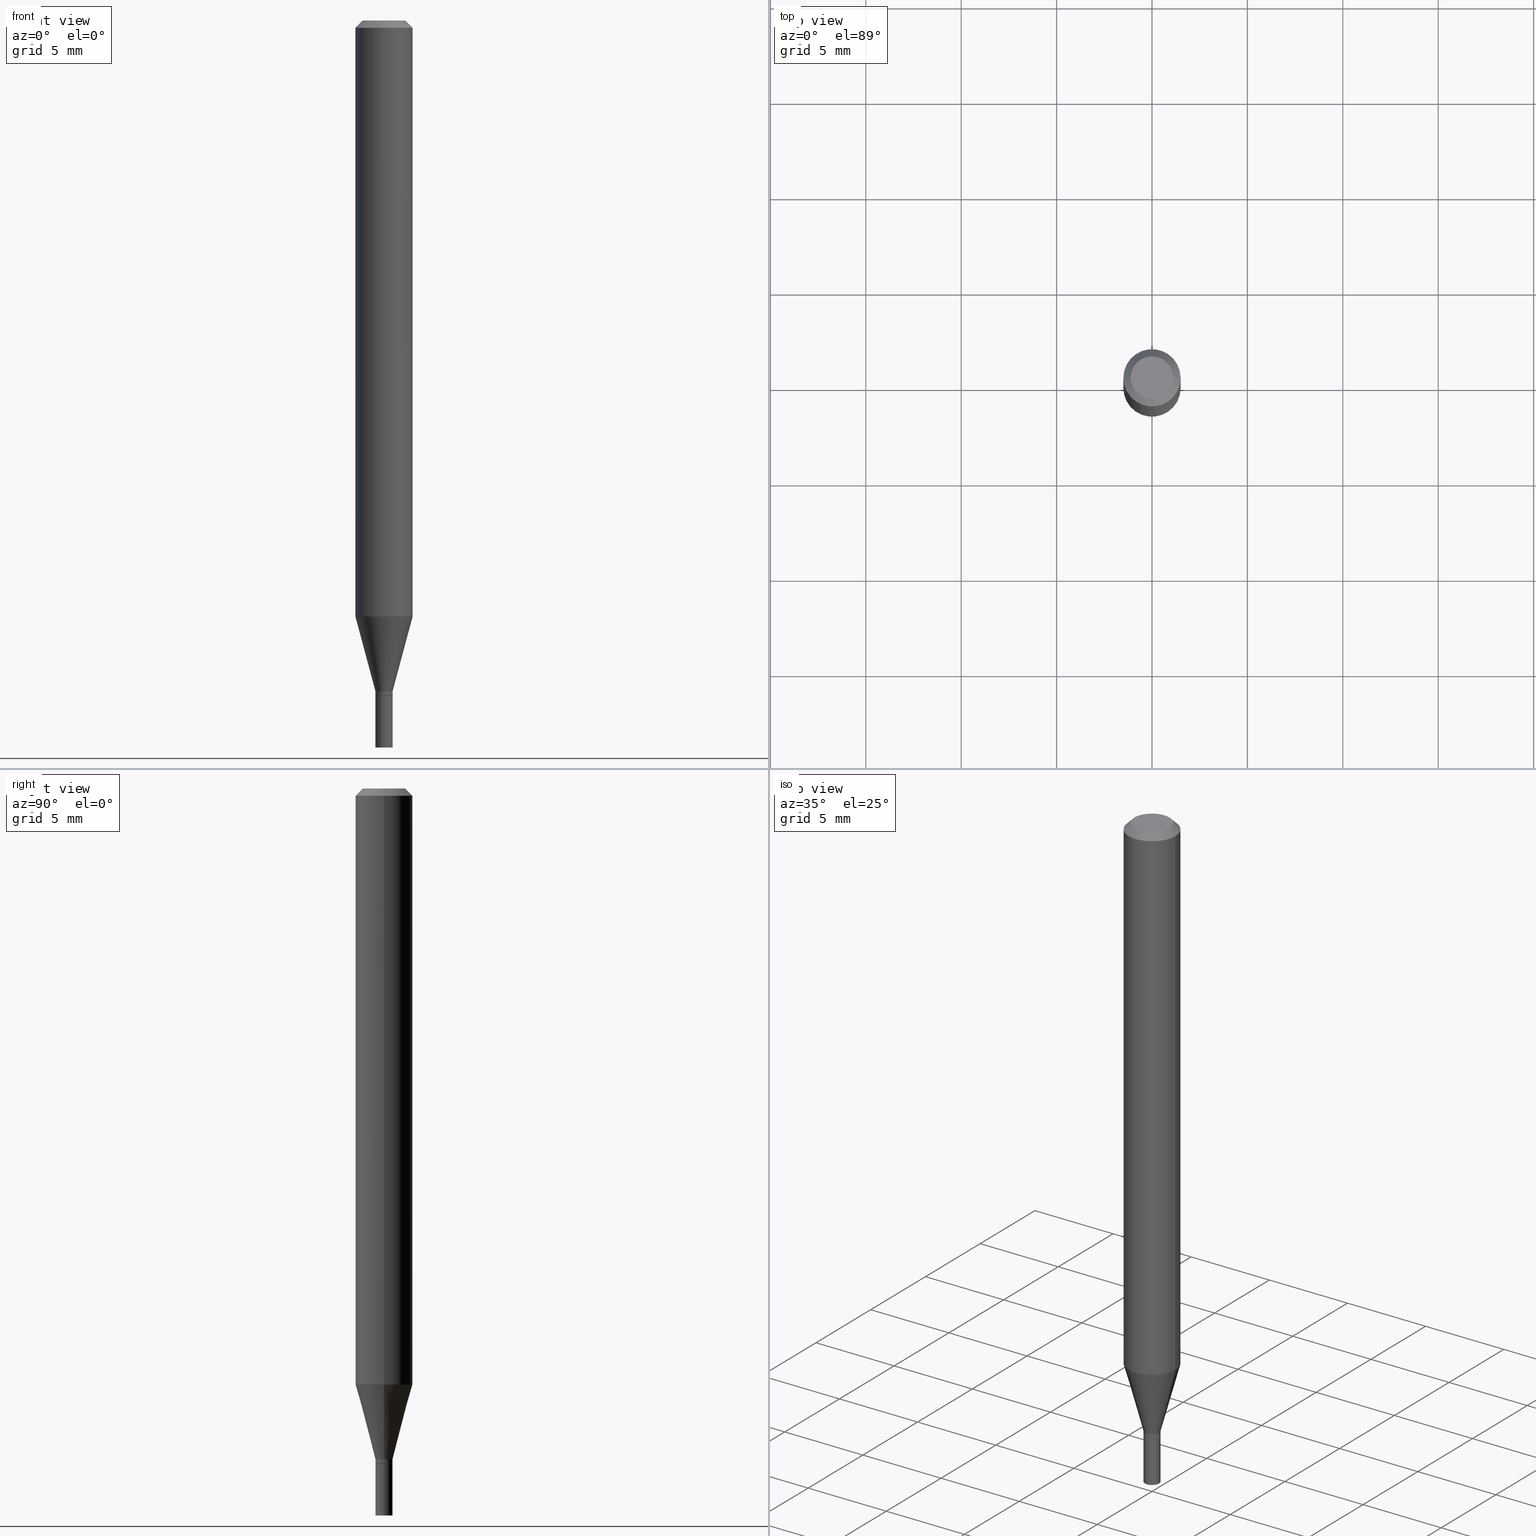
[diagram: canonical four-view strip — front | top / right | iso, engineering-drawing reading convention]
A machine part, canonical four-view strip (front | top / right | iso — engineering-drawing reading convention). The complete STEP part file that produces these views, byte-faithful:
ISO-10303-21;
HEADER;
FILE_DESCRIPTION (( 'STEP AP203' ),
    '1' );
FILE_NAME ('02356.STEP',
    '2024-03-18T20:13:35',
    ( '' ),
    ( '' ),
    'SwSTEP 2.0',
    'SolidWorks 2023',
    '' );
FILE_SCHEMA (( 'CONFIG_CONTROL_DESIGN' ));
ENDSEC;

DATA;
#1 = CARTESIAN_POINT ( 'NONE',  ( 3.007143345765359865E-29, -4.293403722186439259E-15, -1.229679699107027124 ) ) ;
#2 = ORIENTED_EDGE ( 'NONE', *, *, #147, .F. ) ;
#3 = DIRECTION ( 'NONE',  ( 1.000000000000000000, -6.982962677686247778E-15, 0.000000000000000000 ) ) ;
#4 = FACE_OUTER_BOUND ( 'NONE', #128, .T. ) ;
#5 = CONICAL_SURFACE ( 'NONE', #73, 0.01769999999999992413, 0.2617993877991501295 ) ;
#6 = DIRECTION ( 'NONE',  ( 2.438088387897960049E-29, -3.491481338843145188E-15, -1.000000000000000000 ) ) ;
#7 = EDGE_CURVE ( 'NONE', #20, #191, #131, .T. ) ;
#8 = DIRECTION ( 'NONE',  ( 1.000000000000000000, -6.982962677686266711E-15, 4.876176775795935793E-29 ) ) ;
#9 = PRODUCT ( '02356', '02356', '', ( #230 ) ) ;
#10 = DIRECTION ( 'NONE',  ( 0.7071067811865450192, -7.319954787623246579E-15, -0.7071067811865500152 ) ) ;
#11 = ADVANCED_FACE ( 'NONE', ( #60 ), #344, .F. ) ;
#12 = ORIENTED_EDGE ( 'NONE', *, *, #349, .T. ) ;
#13 =( NAMED_UNIT ( * ) SI_UNIT ( $, .STERADIAN. ) SOLID_ANGLE_UNIT ( ) );
#14 = EDGE_CURVE ( 'NONE', #234, #450, #375, .T. ) ;
#15 = CALENDAR_DATE ( 2024, 18, 3 ) ;
#16 = AXIS2_PLACEMENT_3D ( 'NONE', #224, #144, #328 ) ;
#17 = AXIS2_PLACEMENT_3D ( 'NONE', #247, #288, #361 ) ;
#18 = ORIENTED_EDGE ( 'NONE', *, *, #212, .T. ) ;
#19 = APPROVAL_ROLE ( '' ) ;
#20 = VERTEX_POINT ( 'NONE', #42 ) ;
#21 = MANIFOLD_SOLID_BREP ( 'Body-Move/Copy2[1]', #449 ) ;
#22 = APPROVAL_ROLE ( '' ) ;
#23 = EDGE_LOOP ( 'NONE', ( #447, #226 ) ) ;
#24 = APPROVAL_STATUS ( 'not_yet_approved' ) ;
#25 = ADVANCED_FACE ( 'NONE', ( #362 ), #323, .T. ) ;
#26 = AXIS2_PLACEMENT_3D ( 'NONE', #136, #68, #281 ) ;
#27 = DIRECTION ( 'NONE',  ( -2.445468806185136597E-29, 3.491481338843145583E-15, 1.000000000000000000 ) ) ;
#28 = ORIENTED_EDGE ( 'NONE', *, *, #233, .F. ) ;
#29 = VERTEX_POINT ( 'NONE', #44 ) ;
#30 = CARTESIAN_POINT ( 'NONE',  ( 3.384528827760229323E-29, -4.832210172958913572E-15, -1.384000000000000119 ) ) ;
#31 = VERTEX_POINT ( 'NONE', #399 ) ;
#32 = CARTESIAN_POINT ( 'NONE',  ( -0.01769999999999992413, -4.738565737046734311E-15, -1.393200000000000216 ) ) ;
#33 = CLOSED_SHELL ( 'NONE', ( #25, #155, #315, #91, #97, #64, #135, #337, #420, #11, #363, #376 ) ) ;
#34 = CIRCLE ( 'NONE', #150, 0.01769999999999992413 ) ;
#35 = DIRECTION ( 'NONE',  ( -2.445468806185136597E-29, 3.491481338843145583E-15, 1.000000000000000000 ) ) ;
#36 = CARTESIAN_POINT ( 'NONE',  ( -0.01769999999999992413, -4.706444108729376279E-15, -1.384000000000000119 ) ) ;
#37 = DIRECTION ( 'NONE',  ( 1.000000000000000000, -6.982962677686247778E-15, 0.000000000000000000 ) ) ;
#38 = CARTESIAN_POINT ( 'NONE',  ( 3.668203209277704895E-29, -5.237222008264718177E-15, -1.500000000000000222 ) ) ;
#39 = CIRCLE ( 'NONE', #16, 0.01770000000000000046 ) ;
#40 = DIRECTION ( 'NONE',  ( 1.000000000000000000, -6.982962677686247778E-15, 0.000000000000000000 ) ) ;
#41 = CARTESIAN_POINT ( 'NONE',  ( -0.01720000000000000001, -4.743864191394955136E-15, -1.393700000000000161 ) ) ;
#42 = CARTESIAN_POINT ( 'NONE',  ( 0.01770000000000000046, -5.360820447659765363E-15, -1.500000000000000222 ) ) ;
#43 = CARTESIAN_POINT ( 'NONE',  ( -0.01720000000000000001, -4.741214964220845512E-15, -1.393700000000000161 ) ) ;
#44 = CARTESIAN_POINT ( 'NONE',  ( -0.01770000000000000046, -4.925883710875667561E-15, -1.393700000000000161 ) ) ;
#45 = CIRCLE ( 'NONE', #400, 0.01769999999999992413 ) ;
#46 = VECTOR ( 'NONE', #439, 39.37007874015748143 ) ;
#47 = CARTESIAN_POINT ( 'NONE',  ( -0.05904999999999999832, -1.753312485668204070E-15, -0.01499999999999999944 ) ) ;
#48 = PERSON_AND_ORGANIZATION ( #63, #201 ) ;
#49 = EDGE_LOOP ( 'NONE', ( #61, #307, #385, #163 ) ) ;
#50 = PERSON_AND_ORGANIZATION_ROLE ( 'design_owner' ) ;
#51 = ADVANCED_FACE ( 'NONE', ( #330 ), #142, .F. ) ;
#52 = ORIENTED_EDGE ( 'NONE', *, *, #217, .F. ) ;
#53 = DATE_TIME_ROLE ( 'classification_date' ) ;
#54 = CC_DESIGN_PERSON_AND_ORGANIZATION_ASSIGNMENT ( #333, #122, ( #443 ) ) ;
#55 = AXIS2_PLACEMENT_3D ( 'NONE', #185, #180, #250 ) ;
#56 = VERTEX_POINT ( 'NONE', #239 ) ;
#57 = DATE_AND_TIME ( #15, #423 ) ;
#58 = DIRECTION ( 'NONE',  ( -2.445468806185136877E-29, 3.491481338843145188E-15, 1.000000000000000000 ) ) ;
#59 = APPROVAL_DATE_TIME ( #154, #397 ) ;
#60 = FACE_OUTER_BOUND ( 'NONE', #108, .T. ) ;
#61 = ORIENTED_EDGE ( 'NONE', *, *, #428, .F. ) ;
#62 = LINE ( 'NONE', #109, #413 ) ;
#63 = PERSON ( 'UNSPECIFIED', 'UNSPECIFIED', 'UNSPECIFIED', ('UNSPECIFIED'), ('UNSPECIFIED'), ('UNSPECIFIED') ) ;
#64 = ADVANCED_FACE ( 'NONE', ( #4 ), #251, .T. ) ;
#65 = CARTESIAN_POINT ( 'NONE',  ( 0.000000000000000000, 0.000000000000000000, 0.000000000000000000 ) ) ;
#66 = ORIENTED_EDGE ( 'NONE', *, *, #256, .F. ) ;
#67 = DIRECTION ( 'NONE',  ( 0.2588190451025214611, 1.565188264969621573E-15, 0.9659258262890682012 ) ) ;
#68 = DIRECTION ( 'NONE',  ( 2.438088387897960049E-29, -3.491481338843145188E-15, -1.000000000000000000 ) ) ;
#69 = AXIS2_PLACEMENT_3D ( 'NONE', #213, #358, #429 ) ;
#70 = LINE ( 'NONE', #78, #46 ) ;
#71 = LENGTH_MEASURE_WITH_UNIT ( LENGTH_MEASURE( 0.02539999999999999897 ), #366 );
#72 = DIRECTION ( 'NONE',  ( -2.445468806185136597E-29, 3.491481338843145583E-15, 1.000000000000000000 ) ) ;
#73 = AXIS2_PLACEMENT_3D ( 'NONE', #30, #433, #438 ) ;
#74 = APPROVAL ( #306, 'UNSPECIFIED' ) ;
#75 = FACE_OUTER_BOUND ( 'NONE', #419, .T. ) ;
#76 = EDGE_CURVE ( 'NONE', #346, #269, #312, .T. ) ;
#77 = FACE_OUTER_BOUND ( 'NONE', #356, .T. ) ;
#78 = CARTESIAN_POINT ( 'NONE',  ( -0.01769999999999992413, 1.257660642295371938E-16, -8.706515109751145864E-31 ) ) ;
#79 = FACE_OUTER_BOUND ( 'NONE', #235, .T. ) ;
#80 = EDGE_CURVE ( 'NONE', #140, #148, #387, .T. ) ;
#81 = CARTESIAN_POINT ( 'NONE',  ( -0.05904999999999999832, -3.873828236720099766E-15, -1.229679699107027124 ) ) ;
#82 = AXIS2_PLACEMENT_3D ( 'NONE', #326, #165, #139 ) ;
#83 = CALENDAR_DATE ( 2024, 18, 3 ) ;
#84 = COORDINATED_UNIVERSAL_TIME_OFFSET ( 5, 0, .BEHIND. ) ;
#85 = EDGE_CURVE ( 'NONE', #56, #324, #284, .T. ) ;
#86 = APPLICATION_CONTEXT ( 'configuration controlled 3d designs of mechanical parts and assemblies' ) ;
#87 = APPROVAL_ROLE ( '' ) ;
#88 = ORIENTED_EDGE ( 'NONE', *, *, #14, .T. ) ;
#89 = VECTOR ( 'NONE', #382, 39.37007874015747433 ) ;
#90 = APPROVAL_PERSON_ORGANIZATION ( #379, #397, #22 ) ;
#91 = ADVANCED_FACE ( 'NONE', ( #79 ), #181, .T. ) ;
#92 = DIRECTION ( 'NONE',  ( -2.445468806185136597E-29, 3.491481338843145583E-15, 1.000000000000000000 ) ) ;
#93 = DATE_AND_TIME ( #83, #377 ) ;
#94 = ORIENTED_EDGE ( 'NONE', *, *, #300, .T. ) ;
#95 = VERTEX_POINT ( 'NONE', #403 ) ;
#96 = ORIENTED_EDGE ( 'NONE', *, *, #76, .F. ) ;
#97 = ADVANCED_FACE ( 'NONE', ( #77 ), #5, .T. ) ;
#98 = AXIS2_PLACEMENT_3D ( 'NONE', #221, #254, #441 ) ;
#99 = LINE ( 'NONE', #386, #442 ) ;
#100 = AXIS2_PLACEMENT_3D ( 'NONE', #402, #6, #396 ) ;
#101 = VERTEX_POINT ( 'NONE', #117 ) ;
#102 = CARTESIAN_POINT ( 'NONE',  ( 0.05904999999999999832, -4.123439461173740327E-16, 2.879382386107500220E-30 ) ) ;
#103 = DIRECTION ( 'NONE',  ( -2.445468806185136597E-29, 3.491481338843145583E-15, 1.000000000000000000 ) ) ;
#104 = DIRECTION ( 'NONE',  ( 1.000000000000000000, -6.982962677686265922E-15, 4.888540261209747396E-29 ) ) ;
#105 = AXIS2_PLACEMENT_3D ( 'NONE', #458, #172, #462 ) ;
#106 = CC_DESIGN_APPROVAL ( #397, ( #401 ) ) ;
#107 = EDGE_CURVE ( 'NONE', #324, #101, #280, .T. ) ;
#108 = EDGE_LOOP ( 'NONE', ( #418, #273 ) ) ;
#109 = CARTESIAN_POINT ( 'NONE',  ( 0.01720000000000000001, -4.986184500001896497E-15, -1.393700000000000161 ) ) ;
#110 = DIRECTION ( 'NONE',  ( -2.445468806185136597E-29, 3.491481338843145583E-15, 1.000000000000000000 ) ) ;
#111 = CARTESIAN_POINT ( 'NONE',  ( 3.408249875180225636E-29, -4.866077541945693107E-15, -1.393700000000000161 ) ) ;
#112 = LINE ( 'NONE', #282, #199 ) ;
#113 = CARTESIAN_POINT ( 'NONE',  ( -0.05904999999999999832, 3.599717260347268549E-16, -0.01499999999999999944 ) ) ;
#114 = CIRCLE ( 'NONE', #277, 0.05904999999999999832 ) ;
#115 = LOCAL_TIME ( 16, 13, 35.00000000000000000, #446 ) ;
#116 = DIRECTION ( 'NONE',  ( -1.000000000000000000, 6.982962677686266711E-15, 0.000000000000000000 ) ) ;
#117 = CARTESIAN_POINT ( 'NONE',  ( 0.05904999999999999832, -4.647161662000212105E-16, -0.01499999999999999944 ) ) ;
#118 = CARTESIAN_POINT ( 'NONE',  ( 0.000000000000000000, 0.000000000000000000, 0.000000000000000000 ) ) ;
#119 = APPROVAL_DATE_TIME ( #374, #322 ) ;
#120 = CIRCLE ( 'NONE', #359, 0.01720000000000000001 ) ;
#121 = PERSON_AND_ORGANIZATION ( #63, #201 ) ;
#122 = PERSON_AND_ORGANIZATION_ROLE ( 'creator' ) ;
#123 = ORIENTED_EDGE ( 'NONE', *, *, #212, .F. ) ;
#124 = SECURITY_CLASSIFICATION_LEVEL ( 'unclassified' ) ;
#125 = PERSON_AND_ORGANIZATION ( #63, #201 ) ;
#126 = VECTOR ( 'NONE', #220, 39.37007874015748143 ) ;
#127 = EDGE_CURVE ( 'NONE', #31, #346, #120, .T. ) ;
#128 = EDGE_LOOP ( 'NONE', ( #200, #94, #203, #123 ) ) ;
#129 = CARTESIAN_POINT ( 'NONE',  ( 3.408249875180225636E-29, -4.866077541945693107E-15, -1.393700000000000161 ) ) ;
#130 = ORIENTED_EDGE ( 'NONE', *, *, #223, .F. ) ;
#131 = CIRCLE ( 'NONE', #392, 0.01770000000000000046 ) ;
#132 =( GEOMETRIC_REPRESENTATION_CONTEXT ( 3 ) GLOBAL_UNCERTAINTY_ASSIGNED_CONTEXT ( ( #260 ) ) GLOBAL_UNIT_ASSIGNED_CONTEXT ( ( #291, #192, #13 ) ) REPRESENTATION_CONTEXT ( 'NONE', 'WORKASPACE' ) );
#133 = DIRECTION ( 'NONE',  ( 1.000000000000000000, -6.982962677686247778E-15, 0.000000000000000000 ) ) ;
#134 = DIRECTION ( 'NONE',  ( -2.445468806185136597E-29, 3.491481338843145583E-15, 1.000000000000000000 ) ) ;
#135 = ADVANCED_FACE ( 'NONE', ( #367 ), #292, .T. ) ;
#136 = CARTESIAN_POINT ( 'NONE',  ( 1.235984393950809836E-16, 0.01769999999999513282, -1.393700000000000161 ) ) ;
#137 = FACE_OUTER_BOUND ( 'NONE', #373, .T. ) ;
#138 = EDGE_CURVE ( 'NONE', #148, #234, #241, .T. ) ;
#139 = DIRECTION ( 'NONE',  ( 1.000000000000000000, -6.982962677686265922E-15, 4.876176775795935793E-29 ) ) ;
#140 = VERTEX_POINT ( 'NONE', #353 ) ;
#141 = DIRECTION ( 'NONE',  ( -2.445468806185136877E-29, 3.491481338843145188E-15, 1.000000000000000000 ) ) ;
#142 = PLANE ( 'NONE',  #82 ) ;
#143 = CIRCLE ( 'NONE', #354, 0.04404999999999999888 ) ;
#144 = DIRECTION ( 'NONE',  ( -2.445468806185136597E-29, 3.491481338843145583E-15, 1.000000000000000000 ) ) ;
#145 = DIRECTION ( 'NONE',  ( 1.000000000000000000, -6.982962677686242256E-15, 0.000000000000000000 ) ) ;
#146 = CYLINDRICAL_SURFACE ( 'NONE', #262, 0.01769999999999992413 ) ;
#147 = EDGE_CURVE ( 'NONE', #101, #324, #114, .T. ) ;
#148 = VERTEX_POINT ( 'NONE', #466 ) ;
#149 = PERSON_AND_ORGANIZATION ( #63, #201 ) ;
#150 = AXIS2_PLACEMENT_3D ( 'NONE', #321, #364, #40 ) ;
#151 = ORIENTED_EDGE ( 'NONE', *, *, #80, .T. ) ;
#152 = DATE_TIME_ROLE ( 'creation_date' ) ;
#153 = EDGE_LOOP ( 'NONE', ( #274, #381, #308, #130 ) ) ;
#154 = DATE_AND_TIME ( #157, #190 ) ;
#155 = ADVANCED_FACE ( 'NONE', ( #137 ), #384, .T. ) ;
#156 = CC_DESIGN_DATE_AND_TIME_ASSIGNMENT ( #57, #152, ( #443 ) ) ;
#157 = CALENDAR_DATE ( 2024, 18, 3 ) ;
#158 = AXIS2_PLACEMENT_3D ( 'NONE', #249, #440, #8 ) ;
#159 = ORIENTED_EDGE ( 'NONE', *, *, #138, .F. ) ;
#160 = LINE ( 'NONE', #293, #463 ) ;
#161 = CC_DESIGN_SECURITY_CLASSIFICATION ( #401, ( #371 ) ) ;
#162 = CARTESIAN_POINT ( 'NONE',  ( -2.672865154728371978E-45, 3.816143058285937292E-31, 1.092986812167916054E-16 ) ) ;
#163 = ORIENTED_EDGE ( 'NONE', *, *, #107, .T. ) ;
#164 = CARTESIAN_POINT ( 'NONE',  ( -2.672865154728371978E-45, 3.816143058285937292E-31, 1.092986812167916054E-16 ) ) ;
#165 = DIRECTION ( 'NONE',  ( -2.438088387897960049E-29, 3.491481338843145188E-15, 1.000000000000000000 ) ) ;
#166 = AXIS2_PLACEMENT_3D ( 'NONE', #1, #218, #179 ) ;
#167 = DIRECTION ( 'NONE',  ( -2.445468806185136597E-29, 3.491481338843145583E-15, 1.000000000000000000 ) ) ;
#168 = DIRECTION ( 'NONE',  ( 1.000000000000000000, -6.982962677686266711E-15, 0.000000000000000000 ) ) ;
#169 = EDGE_CURVE ( 'NONE', #450, #324, #160, .T. ) ;
#170 = EDGE_CURVE ( 'NONE', #424, #450, #207, .T. ) ;
#171 = DIRECTION ( 'NONE',  ( 1.000000000000000000, -6.982962677686265922E-15, 4.876176775795935232E-29 ) ) ;
#172 = DIRECTION ( 'NONE',  ( -2.445468806185136597E-29, 3.491481338843145583E-15, 1.000000000000000000 ) ) ;
#173 = EDGE_CURVE ( 'NONE', #56, #302, #143, .T. ) ;
#174 = MANIFOLD_SOLID_BREP ( 'Body-Move/Copy2[2]', #33 ) ;
#175 = DIRECTION ( 'NONE',  ( 2.445468806185136597E-29, -3.491481338843145583E-15, -1.000000000000000000 ) ) ;
#176 = AXIS2_PLACEMENT_3D ( 'NONE', #431, #311, #390 ) ;
#177 = CC_DESIGN_APPROVAL ( #74, ( #443 ) ) ;
#178 = DIRECTION ( 'NONE',  ( -2.445468806185136597E-29, 3.491481338843145583E-15, 1.000000000000000000 ) ) ;
#179 = DIRECTION ( 'NONE',  ( 1.000000000000000000, -6.982962677686265133E-15, 0.000000000000000000 ) ) ;
#180 = DIRECTION ( 'NONE',  ( -2.445468806185136597E-29, 3.491481338843145583E-15, 1.000000000000000000 ) ) ;
#181 = CYLINDRICAL_SURFACE ( 'NONE', #210, 0.05904999999999999832 ) ;
#182 = CARTESIAN_POINT ( 'NONE',  ( 0.000000000000000000, 0.000000000000000000, 0.000000000000000000 ) ) ;
#183 = CARTESIAN_POINT ( 'NONE',  ( 0.01769999999999992413, -1.235984393950463970E-16, 8.630832893158769065E-31 ) ) ;
#184 = VECTOR ( 'NONE', #209, 39.37007874015748143 ) ;
#185 = CARTESIAN_POINT ( 'NONE',  ( 3.408249875180225636E-29, -4.866077541945693107E-15, -1.393700000000000161 ) ) ;
#186 = PERSON_AND_ORGANIZATION_ROLE ( 'creator' ) ;
#187 = DIRECTION ( 'NONE',  ( -2.445468806185136597E-29, 3.491481338843145583E-15, 1.000000000000000000 ) ) ;
#188 = EDGE_CURVE ( 'NONE', #31, #140, #62, .T. ) ;
#189 = CONICAL_SURFACE ( 'NONE', #98, 0.05904999999999999832, 0.7853981633974447263 ) ;
#190 = LOCAL_TIME ( 16, 13, 35.00000000000000000, #270 ) ;
#191 = VERTEX_POINT ( 'NONE', #238 ) ;
#192 =( NAMED_UNIT ( * ) PLANE_ANGLE_UNIT ( ) SI_UNIT ( $, .RADIAN. ) );
#193 = ORIENTED_EDGE ( 'NONE', *, *, #327, .F. ) ;
#194 = COORDINATED_UNIVERSAL_TIME_OFFSET ( 5, 0, .BEHIND. ) ;
#195 = ORIENTED_EDGE ( 'NONE', *, *, #428, .T. ) ;
#196 = APPROVAL_DATE_TIME ( #378, #74 ) ;
#197 = ORIENTED_EDGE ( 'NONE', *, *, #76, .T. ) ;
#198 = EDGE_LOOP ( 'NONE', ( #303, #409 ) ) ;
#199 = VECTOR ( 'NONE', #141, 39.37007874015748143 ) ;
#200 = ORIENTED_EDGE ( 'NONE', *, *, #170, .F. ) ;
#201 = ORGANIZATION ( 'UNSPECIFIED', 'UNSPECIFIED', '' ) ;
#202 = DIRECTION ( 'NONE',  ( -2.445468806185136597E-29, 3.491481338843145583E-15, 1.000000000000000000 ) ) ;
#203 = ORIENTED_EDGE ( 'NONE', *, *, #138, .T. ) ;
#204 = EDGE_LOOP ( 'NONE', ( #320, #18, #240, #286 ) ) ;
#205 = LINE ( 'NONE', #102, #334 ) ;
#206 = ORIENTED_EDGE ( 'NONE', *, *, #266, .F. ) ;
#207 = LINE ( 'NONE', #36, #89 ) ;
#208 = ADVANCED_FACE ( 'NONE', ( #211 ), #460, .T. ) ;
#209 = DIRECTION ( 'NONE',  ( -0.7071067811865450192, 2.468850131082230634E-15, -0.7071067811865500152 ) ) ;
#210 = AXIS2_PLACEMENT_3D ( 'NONE', #65, #253, #365 ) ;
#211 = FACE_OUTER_BOUND ( 'NONE', #153, .T. ) ;
#212 = EDGE_CURVE ( 'NONE', #450, #234, #430, .T. ) ;
#213 = CARTESIAN_POINT ( 'NONE',  ( 3.007143345765359865E-29, -4.293403722186439259E-15, -1.229679699107027124 ) ) ;
#214 = CC_DESIGN_DATE_AND_TIME_ASSIGNMENT ( #93, #53, ( #401 ) ) ;
#215 = FACE_OUTER_BOUND ( 'NONE', #23, .T. ) ;
#216 = FACE_OUTER_BOUND ( 'NONE', #445, .T. ) ;
#217 = EDGE_CURVE ( 'NONE', #234, #101, #205, .T. ) ;
#218 = DIRECTION ( 'NONE',  ( -2.445468806185136597E-29, 3.491481338843145583E-15, 1.000000000000000000 ) ) ;
#219 = CARTESIAN_POINT ( 'NONE',  ( 3.668203209277705088E-31, -5.237222008264718399E-17, -0.01499999999999999944 ) ) ;
#220 = DIRECTION ( 'NONE',  ( -2.445468806185136877E-29, 3.491481338843145188E-15, 1.000000000000000000 ) ) ;
#221 = CARTESIAN_POINT ( 'NONE',  ( 3.668203209277705088E-31, -5.237222008264718399E-17, -0.01499999999999999944 ) ) ;
#222 = DIRECTION ( 'NONE',  ( 1.000000000000000000, -6.982962677686266711E-15, 0.000000000000000000 ) ) ;
#223 = EDGE_CURVE ( 'NONE', #20, #95, #99, .T. ) ;
#224 = CARTESIAN_POINT ( 'NONE',  ( 3.408249875180225636E-29, -4.866077541945693107E-15, -1.393700000000000161 ) ) ;
#225 = CIRCLE ( 'NONE', #176, 0.01720000000000000001 ) ;
#226 = ORIENTED_EDGE ( 'NONE', *, *, #266, .T. ) ;
#227 = APPLICATION_PROTOCOL_DEFINITION ( 'international standard', 'config_control_design', 1994, #295 ) ;
#228 = CALENDAR_DATE ( 2024, 18, 3 ) ;
#229 = APPROVAL_PERSON_ORGANIZATION ( #415, #322, #87 ) ;
#230 = MECHANICAL_CONTEXT ( 'NONE', #295, 'mechanical' ) ;
#231 = PERSON_AND_ORGANIZATION_ROLE ( 'classification_officer' ) ;
#232 = EDGE_LOOP ( 'NONE', ( #453, #338, #151, #347 ) ) ;
#233 = EDGE_CURVE ( 'NONE', #140, #269, #45, .T. ) ;
#234 = VERTEX_POINT ( 'NONE', #454 ) ;
#235 = EDGE_LOOP ( 'NONE', ( #88, #276, #2, #52 ) ) ;
#236 = VECTOR ( 'NONE', #10, 39.37007874015748143 ) ;
#237 = EDGE_LOOP ( 'NONE', ( #193, #416, #404, #66 ) ) ;
#238 = CARTESIAN_POINT ( 'NONE',  ( -0.01770000000000000046, -4.925883710875667561E-15, -1.500000000000000222 ) ) ;
#239 = CARTESIAN_POINT ( 'NONE',  ( -0.04404999999999999888, 3.337856159934036604E-16, 1.092986812167893621E-16 ) ) ;
#240 = ORIENTED_EDGE ( 'NONE', *, *, #217, .T. ) ;
#241 = LINE ( 'NONE', #389, #261 ) ;
#242 = FACE_OUTER_BOUND ( 'NONE', #267, .T. ) ;
#243 = AXIS2_PLACEMENT_3D ( 'NONE', #111, #187, #383 ) ;
#244 = DIRECTION ( 'NONE',  ( -2.445468806185136877E-29, 3.491481338843145188E-15, 1.000000000000000000 ) ) ;
#245 = CC_DESIGN_PERSON_AND_ORGANIZATION_ASSIGNMENT ( #121, #50, ( #9 ) ) ;
#246 = CONICAL_SURFACE ( 'NONE', #55, 0.01720000000000000001, 0.7853981633974718157 ) ;
#247 = CARTESIAN_POINT ( 'NONE',  ( 3.407027140777133395E-29, -4.864331801276271604E-15, -1.393200000000000216 ) ) ;
#248 = DIRECTION ( 'NONE',  ( 1.000000000000000000, -6.982962677686271444E-15, 0.000000000000000000 ) ) ;
#249 = CARTESIAN_POINT ( 'NONE',  ( 0.000000000000000000, 0.000000000000000000, 0.000000000000000000 ) ) ;
#250 = DIRECTION ( 'NONE',  ( 1.000000000000000000, -6.982962677686242256E-15, 0.000000000000000000 ) ) ;
#251 = CONICAL_SURFACE ( 'NONE', #316, 0.01769999999999992413, 0.2617993877991501295 ) ;
#252 = APPROVAL_PERSON_ORGANIZATION ( #263, #74, #19 ) ;
#253 = DIRECTION ( 'NONE',  ( -2.445468806185136597E-29, 3.491481338843145583E-15, 1.000000000000000000 ) ) ;
#254 = DIRECTION ( 'NONE',  ( 2.445468806185136597E-29, -3.491481338843145583E-15, -1.000000000000000000 ) ) ;
#255 = CARTESIAN_POINT ( 'NONE',  ( 3.408249875180225636E-29, -4.866077541945693107E-15, -1.393700000000000161 ) ) ;
#256 = EDGE_CURVE ( 'NONE', #29, #95, #455, .T. ) ;
#257 = LINE ( 'NONE', #405, #236 ) ;
#258 = SHAPE_DEFINITION_REPRESENTATION ( #372, #459 ) ;
#259 = CC_DESIGN_PERSON_AND_ORGANIZATION_ASSIGNMENT ( #48, #186, ( #371 ) ) ;
#260 = UNCERTAINTY_MEASURE_WITH_UNIT (LENGTH_MEASURE( 1.000000000000000082E-05 ), #291, 'distance_accuracy_value', 'NONE');
#261 = VECTOR ( 'NONE', #67, 39.37007874015747433 ) ;
#262 = AXIS2_PLACEMENT_3D ( 'NONE', #118, #110, #369 ) ;
#263 = PERSON_AND_ORGANIZATION ( #63, #201 ) ;
#264 = ORIENTED_EDGE ( 'NONE', *, *, #256, .T. ) ;
#265 = APPROVAL_STATUS ( 'not_yet_approved' ) ;
#266 = EDGE_CURVE ( 'NONE', #302, #56, #370, .T. ) ;
#267 = EDGE_LOOP ( 'NONE', ( #12, #264 ) ) ;
#268 = AXIS2_PLACEMENT_3D ( 'NONE', #283, #279, #426 ) ;
#269 = VERTEX_POINT ( 'NONE', #32 ) ;
#270 = COORDINATED_UNIVERSAL_TIME_OFFSET ( 5, 0, .BEHIND. ) ;
#271 = ORIENTED_EDGE ( 'NONE', *, *, #80, .F. ) ;
#272 = ADVANCED_FACE ( 'NONE', ( #242 ), #309, .F. ) ;
#273 = ORIENTED_EDGE ( 'NONE', *, *, #287, .F. ) ;
#274 = ORIENTED_EDGE ( 'NONE', *, *, #7, .T. ) ;
#275 = DIRECTION ( 'NONE',  ( -2.438088387897960049E-29, 3.491481338843145188E-15, 1.000000000000000000 ) ) ;
#276 = ORIENTED_EDGE ( 'NONE', *, *, #169, .T. ) ;
#277 = AXIS2_PLACEMENT_3D ( 'NONE', #319, #35, #168 ) ;
#278 = DIRECTION ( 'NONE',  ( 0.7071067811865642261, -2.468850131082431399E-15, 0.7071067811865309194 ) ) ;
#279 = DIRECTION ( 'NONE',  ( -2.445468806185136597E-29, 3.491481338843145583E-15, 1.000000000000000000 ) ) ;
#280 = CIRCLE ( 'NONE', #289, 0.05904999999999999832 ) ;
#281 = DIRECTION ( 'NONE',  ( -1.000000000000000000, 6.982962677686265922E-15, -4.876176775795935793E-29 ) ) ;
#282 = CARTESIAN_POINT ( 'NONE',  ( -0.01770000000000000046, 1.257660642295377361E-16, -8.706515109751182648E-31 ) ) ;
#283 = CARTESIAN_POINT ( 'NONE',  ( 0.000000000000000000, 0.000000000000000000, 0.000000000000000000 ) ) ;
#284 = LINE ( 'NONE', #113, #184 ) ;
#285 = PRODUCT_RELATED_PRODUCT_CATEGORY ( 'detail', '', ( #9 ) ) ;
#286 = ORIENTED_EDGE ( 'NONE', *, *, #107, .F. ) ;
#287 = EDGE_CURVE ( 'NONE', #346, #31, #225, .T. ) ;
#288 = DIRECTION ( 'NONE',  ( -2.445468806185136597E-29, 3.491481338843145583E-15, 1.000000000000000000 ) ) ;
#289 = AXIS2_PLACEMENT_3D ( 'NONE', #456, #72, #222 ) ;
#290 = DIRECTION ( 'NONE',  ( -2.445468806185136597E-29, 3.491481338843145583E-15, 1.000000000000000000 ) ) ;
#291 =( CONVERSION_BASED_UNIT ( 'INCH', #71 ) LENGTH_UNIT ( ) NAMED_UNIT ( #351 ) );
#292 = CYLINDRICAL_SURFACE ( 'NONE', #268, 0.05904999999999999832 ) ;
#293 = CARTESIAN_POINT ( 'NONE',  ( -0.05904999999999999832, 4.195754854663391478E-16, -2.904631170795521892E-30 ) ) ;
#294 = CC_DESIGN_PERSON_AND_ORGANIZATION_ASSIGNMENT ( #149, #231, ( #401 ) ) ;
#295 = APPLICATION_CONTEXT ( 'configuration controlled 3d designs of mechanical parts and assemblies' ) ;
#296 = DIRECTION ( 'NONE',  ( 1.000000000000000000, -6.982962677686265922E-15, 4.876176775795935232E-29 ) ) ;
#297 = ORIENTED_EDGE ( 'NONE', *, *, #444, .T. ) ;
#298 = DIRECTION ( 'NONE',  ( 0.000000000000000000, 0.000000000000000000, 1.000000000000000000 ) ) ;
#299 = CONICAL_SURFACE ( 'NONE', #408, 0.05904999999999999832, 0.7853981633974447263 ) ;
#300 = EDGE_CURVE ( 'NONE', #424, #148, #464, .T. ) ;
#301 = COORDINATED_UNIVERSAL_TIME_OFFSET ( 5, 0, .BEHIND. ) ;
#302 = VERTEX_POINT ( 'NONE', #432 ) ;
#303 = ORIENTED_EDGE ( 'NONE', *, *, #7, .F. ) ;
#304 = AXIS2_PLACEMENT_3D ( 'NONE', #129, #275, #406 ) ;
#305 = ORIENTED_EDGE ( 'NONE', *, *, #147, .T. ) ;
#306 = APPROVAL_STATUS ( 'not_yet_approved' ) ;
#307 = ORIENTED_EDGE ( 'NONE', *, *, #173, .F. ) ;
#308 = ORIENTED_EDGE ( 'NONE', *, *, #349, .F. ) ;
#309 = PLANE ( 'NONE',  #26 ) ;
#310 = ORIENTED_EDGE ( 'NONE', *, *, #457, .T. ) ;
#311 = DIRECTION ( 'NONE',  ( -2.445468806185136597E-29, 3.491481338843145583E-15, 1.000000000000000000 ) ) ;
#312 = LINE ( 'NONE', #41, #313 ) ;
#313 = VECTOR ( 'NONE', #350, 39.37007874015748143 ) ;
#314 = AXIS2_PLACEMENT_3D ( 'NONE', #38, #317, #248 ) ;
#315 = ADVANCED_FACE ( 'NONE', ( #216 ), #299, .T. ) ;
#316 = AXIS2_PLACEMENT_3D ( 'NONE', #435, #290, #133 ) ;
#317 = DIRECTION ( 'NONE',  ( -2.445468806185136597E-29, 3.491481338843145583E-15, 1.000000000000000000 ) ) ;
#318 = AXIS2_PLACEMENT_3D ( 'NONE', #182, #178, #296 ) ;
#319 = CARTESIAN_POINT ( 'NONE',  ( 3.668203209277705088E-31, -5.237222008264718399E-17, -0.01499999999999999944 ) ) ;
#320 = ORIENTED_EDGE ( 'NONE', *, *, #169, .F. ) ;
#321 = CARTESIAN_POINT ( 'NONE',  ( 3.384528827760229323E-29, -4.832210172958913572E-15, -1.384000000000000119 ) ) ;
#322 = APPROVAL ( #265, 'UNSPECIFIED' ) ;
#323 = CYLINDRICAL_SURFACE ( 'NONE', #158, 0.01769999999999992413 ) ;
#324 = VERTEX_POINT ( 'NONE', #47 ) ;
#325 = FACE_OUTER_BOUND ( 'NONE', #237, .T. ) ;
#326 = CARTESIAN_POINT ( 'NONE',  ( 3.576687321579069994E-29, -5.368277968210015545E-15, -1.500000000000000222 ) ) ;
#327 = EDGE_CURVE ( 'NONE', #191, #29, #112, .T. ) ;
#328 = DIRECTION ( 'NONE',  ( 1.000000000000000000, -6.982962677686271444E-15, 0.000000000000000000 ) ) ;
#329 = AXIS2_PLACEMENT_3D ( 'NONE', #345, #167, #171 ) ;
#330 = FACE_OUTER_BOUND ( 'NONE', #198, .T. ) ;
#331 = FACE_OUTER_BOUND ( 'NONE', #49, .T. ) ;
#332 = ORIENTED_EDGE ( 'NONE', *, *, #127, .T. ) ;
#333 = PERSON_AND_ORGANIZATION ( #63, #201 ) ;
#334 = VECTOR ( 'NONE', #244, 39.37007874015748143 ) ;
#335 = CIRCLE ( 'NONE', #314, 0.01770000000000000046 ) ;
#336 = ORIENTED_EDGE ( 'NONE', *, *, #233, .T. ) ;
#337 = ADVANCED_FACE ( 'NONE', ( #331 ), #189, .T. ) ;
#338 = ORIENTED_EDGE ( 'NONE', *, *, #357, .T. ) ;
#339 = APPLICATION_PROTOCOL_DEFINITION ( 'international standard', 'config_control_design', 1994, #86 ) ;
#340 = EDGE_LOOP ( 'NONE', ( #336, #310, #417, #271 ) ) ;
#341 = ORIENTED_EDGE ( 'NONE', *, *, #188, .F. ) ;
#342 = ORIENTED_EDGE ( 'NONE', *, *, #287, .T. ) ;
#343 = AXIS2_PLACEMENT_3D ( 'NONE', #425, #434, #3 ) ;
#344 = PLANE ( 'NONE',  #304 ) ;
#345 = CARTESIAN_POINT ( 'NONE',  ( 0.000000000000000000, 0.000000000000000000, 0.000000000000000000 ) ) ;
#346 = VERTEX_POINT ( 'NONE', #43 ) ;
#347 = ORIENTED_EDGE ( 'NONE', *, *, #300, .F. ) ;
#348 = DIRECTION ( 'NONE',  ( 1.000000000000000000, -6.982962677686265922E-15, 4.888540261209747396E-29 ) ) ;
#349 = EDGE_CURVE ( 'NONE', #95, #29, #39, .T. ) ;
#350 = DIRECTION ( 'NONE',  ( -0.7071067811865642261, 7.493145998870414114E-15, 0.7071067811865309194 ) ) ;
#351 = DIMENSIONAL_EXPONENTS ( 1.000000000000000000, 0.000000000000000000, 0.000000000000000000, 0.000000000000000000, 0.000000000000000000, 0.000000000000000000, 0.000000000000000000 ) ;
#352 = ORIENTED_EDGE ( 'NONE', *, *, #14, .F. ) ;
#353 = CARTESIAN_POINT ( 'NONE',  ( 0.01769999999999992413, -4.987930240671317212E-15, -1.393200000000000216 ) ) ;
#354 = AXIS2_PLACEMENT_3D ( 'NONE', #164, #202, #104 ) ;
#355 = CC_DESIGN_APPROVAL ( #322, ( #371 ) ) ;
#356 = EDGE_LOOP ( 'NONE', ( #297, #452, #352, #159 ) ) ;
#357 = EDGE_CURVE ( 'NONE', #269, #140, #393, .T. ) ;
#358 = DIRECTION ( 'NONE',  ( -2.445468806185136597E-29, 3.491481338843145583E-15, 1.000000000000000000 ) ) ;
#359 = AXIS2_PLACEMENT_3D ( 'NONE', #255, #103, #145 ) ;
#360 = LOCAL_TIME ( 16, 13, 35.00000000000000000, #84 ) ;
#361 = DIRECTION ( 'NONE',  ( 1.000000000000000000, -6.982962677686247778E-15, 0.000000000000000000 ) ) ;
#362 = FACE_OUTER_BOUND ( 'NONE', #340, .T. ) ;
#363 = ADVANCED_FACE ( 'NONE', ( #75 ), #246, .T. ) ;
#364 = DIRECTION ( 'NONE',  ( -2.445468806185136597E-29, 3.491481338843145583E-15, 1.000000000000000000 ) ) ;
#365 = DIRECTION ( 'NONE',  ( 1.000000000000000000, -6.982962677686266711E-15, 4.876176775795936353E-29 ) ) ;
#366 =( LENGTH_UNIT ( ) NAMED_UNIT ( * ) SI_UNIT ( $, .METRE. ) );
#367 = FACE_OUTER_BOUND ( 'NONE', #204, .T. ) ;
#368 = DESIGN_CONTEXT ( 'detailed design', #86, 'design' ) ;
#369 = DIRECTION ( 'NONE',  ( 1.000000000000000000, -6.982962677686266711E-15, 4.876176775795935793E-29 ) ) ;
#370 = CIRCLE ( 'NONE', #422, 0.04404999999999999888 ) ;
#371 = PRODUCT_DEFINITION_FORMATION_WITH_SPECIFIED_SOURCE ( 'ANY', '', #9, .NOT_KNOWN. ) ;
#372 = PRODUCT_DEFINITION_SHAPE ( 'NONE', 'NONE',  #443 ) ;
#373 = EDGE_LOOP ( 'NONE', ( #332, #197, #28, #341 ) ) ;
#374 = DATE_AND_TIME ( #228, #115 ) ;
#375 = CIRCLE ( 'NONE', #166, 0.05904999999999999832 ) ;
#376 = ADVANCED_FACE ( 'NONE', ( #407 ), #146, .T. ) ;
#377 = LOCAL_TIME ( 16, 13, 35.00000000000000000, #194 ) ;
#378 = DATE_AND_TIME ( #410, #360 ) ;
#379 = PERSON_AND_ORGANIZATION ( #63, #201 ) ;
#380 = DIRECTION ( 'NONE',  ( 1.000000000000000000, -6.982962677686271444E-15, 0.000000000000000000 ) ) ;
#381 = ORIENTED_EDGE ( 'NONE', *, *, #327, .T. ) ;
#382 = DIRECTION ( 'NONE',  ( -0.2588190451025214611, 5.211531920934551042E-15, 0.9659258262890682012 ) ) ;
#383 = DIRECTION ( 'NONE',  ( 1.000000000000000000, -6.982962677686242256E-15, 0.000000000000000000 ) ) ;
#384 = CONICAL_SURFACE ( 'NONE', #243, 0.01720000000000000001, 0.7853981633974718157 ) ;
#385 = ORIENTED_EDGE ( 'NONE', *, *, #85, .T. ) ;
#386 = CARTESIAN_POINT ( 'NONE',  ( 0.01770000000000000046, -1.235984393950469147E-16, 8.630832893158805849E-31 ) ) ;
#387 = LINE ( 'NONE', #183, #126 ) ;
#388 = ORIENTED_EDGE ( 'NONE', *, *, #85, .F. ) ;
#389 = CARTESIAN_POINT ( 'NONE',  ( 0.01769999999999992413, -4.955808612353959180E-15, -1.384000000000000119 ) ) ;
#390 = DIRECTION ( 'NONE',  ( 1.000000000000000000, -6.982962677686242256E-15, 0.000000000000000000 ) ) ;
#391 = ADVANCED_FACE ( 'NONE', ( #325 ), #465, .T. ) ;
#392 = AXIS2_PLACEMENT_3D ( 'NONE', #414, #92, #380 ) ;
#393 = CIRCLE ( 'NONE', #17, 0.01769999999999992413 ) ;
#394 = CARTESIAN_POINT ( 'NONE',  ( 3.407027140777133395E-29, -4.864331801276271604E-15, -1.393200000000000216 ) ) ;
#395 = EDGE_CURVE ( 'NONE', #191, #20, #335, .T. ) ;
#396 = DIRECTION ( 'NONE',  ( -1.000000000000000000, 6.982962677686265922E-15, -4.876176775795935793E-29 ) ) ;
#397 = APPROVAL ( #24, 'UNSPECIFIED' ) ;
#398 = CARTESIAN_POINT ( 'NONE',  ( -0.01769999999999992413, -4.290136172724738022E-15, -1.384000000000000119 ) ) ;
#399 = CARTESIAN_POINT ( 'NONE',  ( 0.01720000000000000001, -4.986184500001896497E-15, -1.393700000000000161 ) ) ;
#400 = AXIS2_PLACEMENT_3D ( 'NONE', #394, #27, #37 ) ;
#401 = SECURITY_CLASSIFICATION ( '', '', #124 ) ;
#402 = CARTESIAN_POINT ( 'NONE',  ( 3.075995059520799729E-16, 0.04404999999999999888, -9.915041236764475073E-17 ) ) ;
#403 = CARTESIAN_POINT ( 'NONE',  ( 0.01770000000000000046, -4.989675981340739504E-15, -1.393700000000000161 ) ) ;
#404 = ORIENTED_EDGE ( 'NONE', *, *, #223, .T. ) ;
#405 = CARTESIAN_POINT ( 'NONE',  ( 0.05904999999999999832, -4.574846268510561447E-16, -0.01499999999999999944 ) ) ;
#406 = DIRECTION ( 'NONE',  ( 1.000000000000000000, -6.982962677686265922E-15, 4.876176775795935793E-29 ) ) ;
#407 = FACE_OUTER_BOUND ( 'NONE', #232, .T. ) ;
#408 = AXIS2_PLACEMENT_3D ( 'NONE', #219, #175, #116 ) ;
#409 = ORIENTED_EDGE ( 'NONE', *, *, #395, .F. ) ;
#410 = CALENDAR_DATE ( 2024, 18, 3 ) ;
#411 = DIRECTION ( 'NONE',  ( 1.000000000000000000, 0.000000000000000000, 0.000000000000000000 ) ) ;
#412 = PERSON_AND_ORGANIZATION_ROLE ( 'design_supplier' ) ;
#413 = VECTOR ( 'NONE', #278, 39.37007874015748143 ) ;
#414 = CARTESIAN_POINT ( 'NONE',  ( 3.668203209277704895E-29, -5.237222008264718177E-15, -1.500000000000000222 ) ) ;
#415 = PERSON_AND_ORGANIZATION ( #63, #201 ) ;
#416 = ORIENTED_EDGE ( 'NONE', *, *, #395, .T. ) ;
#417 = ORIENTED_EDGE ( 'NONE', *, *, #444, .F. ) ;
#418 = ORIENTED_EDGE ( 'NONE', *, *, #127, .F. ) ;
#419 = EDGE_LOOP ( 'NONE', ( #96, #342, #451, #421 ) ) ;
#420 = ADVANCED_FACE ( 'NONE', ( #215 ), #437, .F. ) ;
#421 = ORIENTED_EDGE ( 'NONE', *, *, #357, .F. ) ;
#422 = AXIS2_PLACEMENT_3D ( 'NONE', #162, #134, #348 ) ;
#423 = LOCAL_TIME ( 16, 13, 35.00000000000000000, #301 ) ;
#424 = VERTEX_POINT ( 'NONE', #398 ) ;
#425 = CARTESIAN_POINT ( 'NONE',  ( 3.384528827760229323E-29, -4.832210172958913572E-15, -1.384000000000000119 ) ) ;
#426 = DIRECTION ( 'NONE',  ( 1.000000000000000000, -6.982962677686266711E-15, 4.876176775795936353E-29 ) ) ;
#427 = DIRECTION ( 'NONE',  ( -2.445468806185136877E-29, 3.491481338843145188E-15, 1.000000000000000000 ) ) ;
#428 = EDGE_CURVE ( 'NONE', #302, #101, #257, .T. ) ;
#429 = DIRECTION ( 'NONE',  ( 1.000000000000000000, -6.982962677686265133E-15, 0.000000000000000000 ) ) ;
#430 = CIRCLE ( 'NONE', #69, 0.05904999999999999832 ) ;
#431 = CARTESIAN_POINT ( 'NONE',  ( 3.408249875180225636E-29, -4.866077541945693107E-15, -1.393700000000000161 ) ) ;
#432 = CARTESIAN_POINT ( 'NONE',  ( 0.04404999999999999888, -3.798447818264458600E-16, 1.092986812167939966E-16 ) ) ;
#433 = DIRECTION ( 'NONE',  ( -2.445468806185136597E-29, 3.491481338843145583E-15, 1.000000000000000000 ) ) ;
#434 = DIRECTION ( 'NONE',  ( -2.445468806185136597E-29, 3.491481338843145583E-15, 1.000000000000000000 ) ) ;
#435 = CARTESIAN_POINT ( 'NONE',  ( 3.384528827760229323E-29, -4.832210172958913572E-15, -1.384000000000000119 ) ) ;
#436 = AXIS2_PLACEMENT_3D ( 'NONE', #448, #298, #411 ) ;
#437 = PLANE ( 'NONE',  #100 ) ;
#438 = DIRECTION ( 'NONE',  ( 1.000000000000000000, -6.982962677686247778E-15, 0.000000000000000000 ) ) ;
#439 = DIRECTION ( 'NONE',  ( -2.445468806185136877E-29, 3.491481338843145188E-15, 1.000000000000000000 ) ) ;
#440 = DIRECTION ( 'NONE',  ( -2.445468806185136597E-29, 3.491481338843145583E-15, 1.000000000000000000 ) ) ;
#441 = DIRECTION ( 'NONE',  ( -1.000000000000000000, 6.982962677686266711E-15, 0.000000000000000000 ) ) ;
#442 = VECTOR ( 'NONE', #427, 39.37007874015748143 ) ;
#443 = PRODUCT_DEFINITION ( 'UNKNOWN', '', #371, #368 ) ;
#444 = EDGE_CURVE ( 'NONE', #148, #424, #34, .T. ) ;
#445 = EDGE_LOOP ( 'NONE', ( #206, #195, #305, #388 ) ) ;
#446 = COORDINATED_UNIVERSAL_TIME_OFFSET ( 5, 0, .BEHIND. ) ;
#447 = ORIENTED_EDGE ( 'NONE', *, *, #173, .T. ) ;
#448 = CARTESIAN_POINT ( 'NONE',  ( 0.000000000000000000, 0.000000000000000000, 0.000000000000000000 ) ) ;
#449 = CLOSED_SHELL ( 'NONE', ( #208, #51, #391, #272 ) ) ;
#450 = VERTEX_POINT ( 'NONE', #81 ) ;
#451 = ORIENTED_EDGE ( 'NONE', *, *, #188, .T. ) ;
#452 = ORIENTED_EDGE ( 'NONE', *, *, #170, .T. ) ;
#453 = ORIENTED_EDGE ( 'NONE', *, *, #457, .F. ) ;
#454 = CARTESIAN_POINT ( 'NONE',  ( 0.05904999999999999832, -4.705747668303811812E-15, -1.229679699107027124 ) ) ;
#455 = CIRCLE ( 'NONE', #105, 0.01770000000000000046 ) ;
#456 = CARTESIAN_POINT ( 'NONE',  ( 3.668203209277705088E-31, -5.237222008264718399E-17, -0.01499999999999999944 ) ) ;
#457 = EDGE_CURVE ( 'NONE', #269, #424, #70, .T. ) ;
#458 = CARTESIAN_POINT ( 'NONE',  ( 3.408249875180225636E-29, -4.866077541945693107E-15, -1.393700000000000161 ) ) ;
#459 = ADVANCED_BREP_SHAPE_REPRESENTATION ( '02356', ( #21, #174, #436 ), #132 ) ;
#460 = CYLINDRICAL_SURFACE ( 'NONE', #329, 0.01770000000000000046 ) ;
#461 = CC_DESIGN_PERSON_AND_ORGANIZATION_ASSIGNMENT ( #125, #412, ( #371 ) ) ;
#462 = DIRECTION ( 'NONE',  ( 1.000000000000000000, -6.982962677686271444E-15, 0.000000000000000000 ) ) ;
#463 = VECTOR ( 'NONE', #58, 39.37007874015748143 ) ;
#464 = CIRCLE ( 'NONE', #343, 0.01769999999999992413 ) ;
#465 = CYLINDRICAL_SURFACE ( 'NONE', #318, 0.01770000000000000046 ) ;
#466 = CARTESIAN_POINT ( 'NONE',  ( 0.01769999999999992413, -4.955808612353959180E-15, -1.384000000000000119 ) ) ;
ENDSEC;
END-ISO-10303-21;
